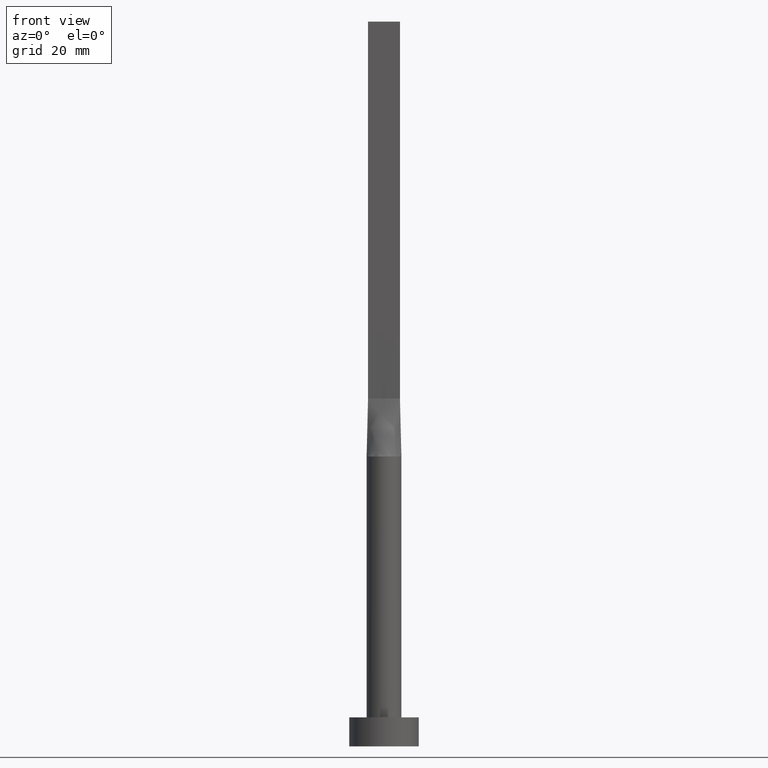
[diagram: clean part render]
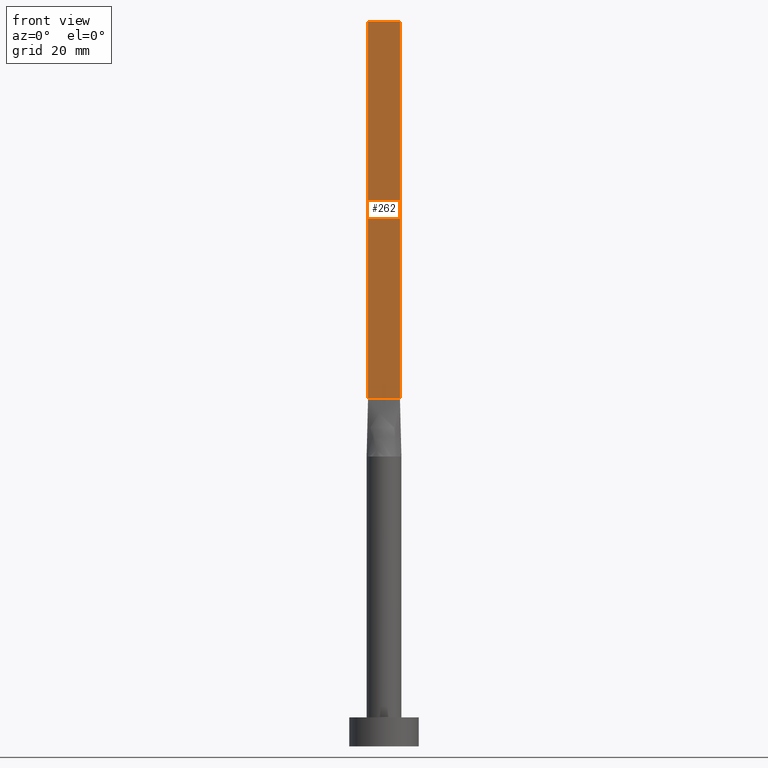
[diagram: same view with one face highlighted and labeled with its STEP entity id]
A machine part, front view. The second image highlights one B-rep face of the part: STEP entity #262.
In plain terms, the highlighted planar face has unit normal (0, 1, -0).
Its self-contained STEP definition (entity closure, byte-faithful):
#18 = VERTEX_POINT ( 'NONE', #77 ) ;
#24 = DIRECTION ( 'NONE',  ( 1.000000000000000000, -5.913830031739115543E-17, 0.000000000000000000 ) ) ;
#27 = LINE ( 'NONE', #155, #438 ) ;
#31 = CARTESIAN_POINT ( 'NONE',  ( -2.750000000000000000, -0.5999999999999994227, 125.0000000000000000 ) ) ;
#55 = VERTEX_POINT ( 'NONE', #269 ) ;
#72 = LINE ( 'NONE', #427, #564 ) ;
#77 = CARTESIAN_POINT ( 'NONE',  ( -2.750000000000000000, -0.5999999999999994227, 60.00000000000000000 ) ) ;
#104 = VECTOR ( 'NONE', #157, 1000.000000000000000 ) ;
#124 = CARTESIAN_POINT ( 'NONE',  ( -2.750000000000000000, -0.5999999999999994227, 125.0000000000000000 ) ) ;
#133 = ORIENTED_EDGE ( 'NONE', *, *, #425, .T. ) ;
#138 = VERTEX_POINT ( 'NONE', #31 ) ;
#155 = CARTESIAN_POINT ( 'NONE',  ( -2.750000000000000000, -0.5999999999999994227, 125.0000000000000000 ) ) ;
#157 = DIRECTION ( 'NONE',  ( -0.000000000000000000, -0.000000000000000000, -1.000000000000000000 ) ) ;
#158 = FACE_OUTER_BOUND ( 'NONE', #401, .T. ) ;
#167 = EDGE_CURVE ( 'NONE', #138, #55, #27, .T. ) ;
#170 = DIRECTION ( 'NONE',  ( 1.000000000000000000, -5.913830031739115543E-17, 0.000000000000000000 ) ) ;
#194 = CARTESIAN_POINT ( 'NONE',  ( -2.750000000000000000, -0.5999999999999994227, 125.0000000000000000 ) ) ;
#201 = LINE ( 'NONE', #124, #104 ) ;
#204 = VECTOR ( 'NONE', #170, 1000.000000000000000 ) ;
#216 = CARTESIAN_POINT ( 'NONE',  ( -2.750000000000000000, -0.5999999999999994227, 60.00000000000000000 ) ) ;
#226 = EDGE_CURVE ( 'NONE', #18, #520, #374, .T. ) ;
#228 = ORIENTED_EDGE ( 'NONE', *, *, #167, .F. ) ;
#237 = ORIENTED_EDGE ( 'NONE', *, *, #417, .F. ) ;
#247 = PLANE ( 'NONE',  #355 ) ;
#262 = ADVANCED_FACE ( 'NONE', ( #158 ), #247, .F. ) ;
#269 = CARTESIAN_POINT ( 'NONE',  ( 2.750000000000000000, -0.5999999999999997558, 125.0000000000000000 ) ) ;
#282 = CARTESIAN_POINT ( 'NONE',  ( 2.750000000000000000, -0.5999999999999997558, 60.00000000000000000 ) ) ;
#284 = ORIENTED_EDGE ( 'NONE', *, *, #226, .T. ) ;
#300 = DIRECTION ( 'NONE',  ( 5.913830031739115543E-17, 1.000000000000000000, -0.000000000000000000 ) ) ;
#355 = AXIS2_PLACEMENT_3D ( 'NONE', #194, #300, #356 ) ;
#356 = DIRECTION ( 'NONE',  ( -1.000000000000000000, 5.913830031739115543E-17, 0.000000000000000000 ) ) ;
#374 = LINE ( 'NONE', #216, #204 ) ;
#401 = EDGE_LOOP ( 'NONE', ( #284, #237, #228, #133 ) ) ;
#417 = EDGE_CURVE ( 'NONE', #55, #520, #72, .T. ) ;
#425 = EDGE_CURVE ( 'NONE', #138, #18, #201, .T. ) ;
#427 = CARTESIAN_POINT ( 'NONE',  ( 2.750000000000000000, -0.5999999999999997558, 125.0000000000000000 ) ) ;
#438 = VECTOR ( 'NONE', #24, 1000.000000000000000 ) ;
#520 = VERTEX_POINT ( 'NONE', #282 ) ;
#564 = VECTOR ( 'NONE', #571, 1000.000000000000000 ) ;
#571 = DIRECTION ( 'NONE',  ( -0.000000000000000000, -0.000000000000000000, -1.000000000000000000 ) ) ;